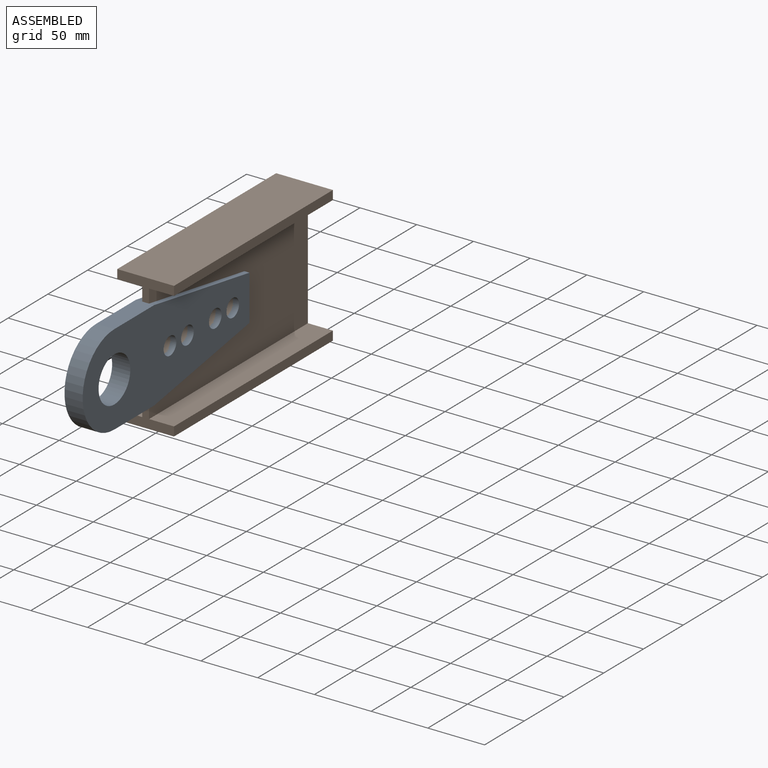
[diagram: assembled view]
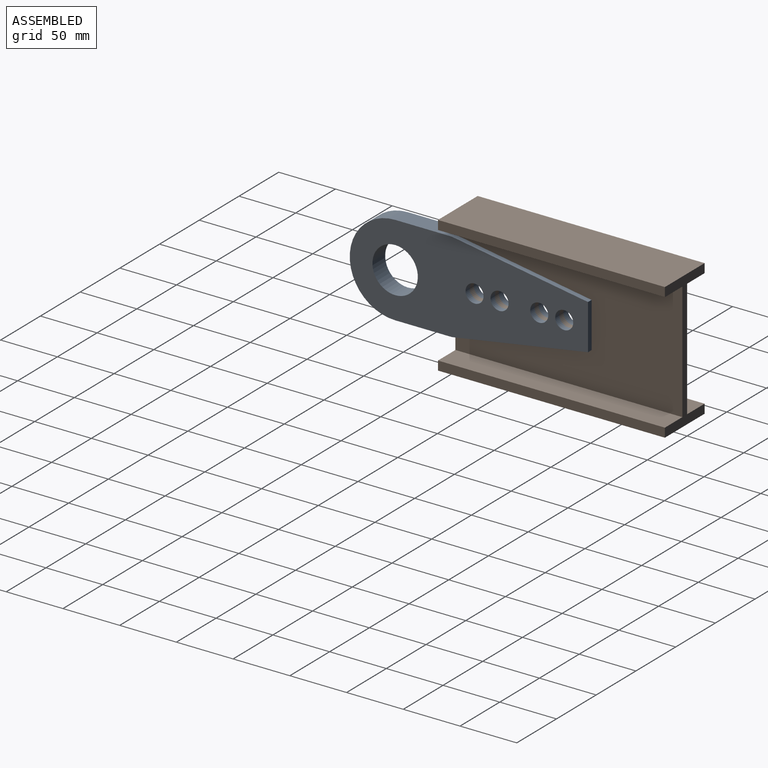
[diagram: assembled view, second angle]
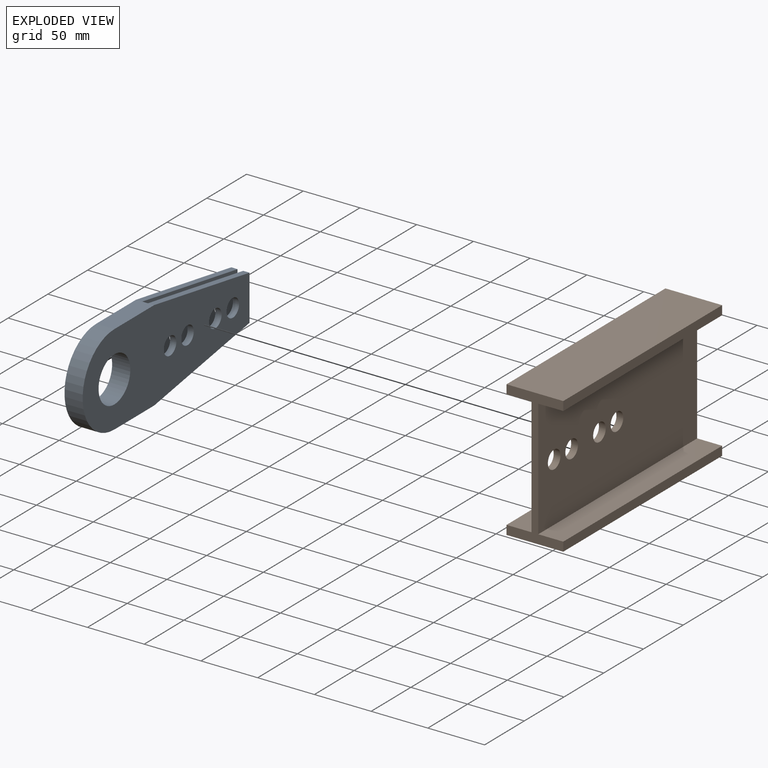
[diagram: exploded view]
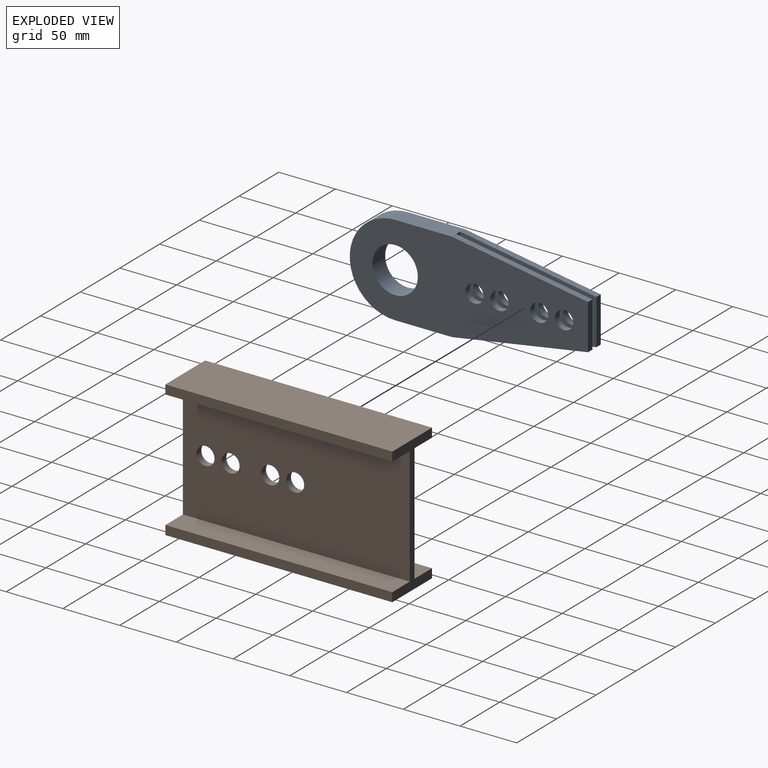
[diagram: exploded view, second angle]
ASSEMBLY  parts=2 mates=3
PART A: 23 faces, bbox 210x16x80 mm
  f0: plane 50x16mm, normal (0,0,1), area 800mm2, adj f1,f2,f3,f8,f9,f17
  f1: plane 120x20mm, normal (-0.16,0,0.99), area 669.1mm2, adj f0,f5,f8,f16
  f2: cylinder r=40mm len=80mm, axis (0,1,0), area 2010.6mm2, adj f0,f7,f8,f9
  f3: plane 120x20mm, normal (-0.16,0,0.99), area 669.1mm2, adj f0,f4,f9,f15
  f4: plane 40x5.5mm, normal (-1,0,0), area 220mm2, adj f3,f9,f15,f18
  f5: plane 40x5.5mm, normal (-1,0,0), area 220mm2, adj f1,f6,f8,f16
  f6: plane 120x20mm, normal (-0.16,0,-0.99), area 669.1mm2, adj f5,f7,f8,f16
  f7: plane 50x16mm, normal (0,0,-1), area 800mm2, adj f2,f6,f8,f9,f17,f18
  f8: plane 210x80mm, normal (0,-1,0), area 11664.4mm2, adj f0,f1,f2,f5,f6,f7,f10,f11
  f9: plane 210x80mm, normal (0,1,0), area 11664.4mm2, adj f0,f2,f3,f4,f7,f14,f18,f19
  f10: cylinder r=7.94mm len=15.88mm, axis (0,1,0), area 274.4mm2, adj f8,f16
  f11: cylinder r=7.94mm len=15.88mm, axis (0,1,0), area 274.4mm2, adj f8,f16
  f12: cylinder r=7.94mm len=15.88mm, axis (0,1,0), area 274.4mm2, adj f8,f16
  f13: cylinder r=7.94mm len=15.88mm, axis (0,1,0), area 274.4mm2, adj f8,f16
  f14: cylinder r=20mm len=40mm, axis (0,1,0), area 2010.6mm2, adj f8,f9
  f15: plane 120x80mm, normal (0,-1,0), area 6407.8mm2, adj f3,f4,f17,f18,f19,f20,f21,f22
  f16: plane 120x80mm, normal (0,1,0), area 6407.8mm2, adj f1,f5,f6,f10,f11,f12,f13,f17
  f17: plane 80x5mm, normal (-1,0,0), area 400mm2, adj f0,f7,f15,f16
  f18: plane 120x20mm, normal (-0.16,0,-0.99), area 669.1mm2, adj f4,f7,f9,f15
  f19: cylinder r=7.94mm len=15.88mm, axis (0,1,0), area 274.4mm2, adj f9,f15
  f20: cylinder r=7.94mm len=15.88mm, axis (0,1,0), area 274.4mm2, adj f9,f15
  f21: cylinder r=7.94mm len=15.88mm, axis (0,1,0), area 274.4mm2, adj f9,f15
  f22: cylinder r=7.94mm len=15.88mm, axis (0,1,0), area 274.4mm2, adj f9,f15
PART B: 18 faces, bbox 50x200x120 mm
  f0: plane 200x104mm, normal (-1,0,0), area 20007.8mm2, adj f1,f2,f5,f6,f7,f8,f9,f10
  f1: plane 200x22mm, normal (0,0,1), area 4400mm2, adj f0,f5,f6,f14
  f2: plane 200x22mm, normal (0,0,-1), area 4400mm2, adj f0,f4,f5,f6
  f3: plane 200x50mm, normal (0,0,1), area 10000mm2, adj f4,f5,f6,f16
  f4: plane 200x8mm, normal (-1,0,0), area 1600mm2, adj f2,f3,f5,f6
  f5: plane 120x50mm, normal (0,1,0), area 1424mm2, adj f0,f1,f2,f3,f4,f11,f12,f13
  f6: plane 120x50mm, normal (0,-1,0), area 1424mm2, adj f0,f1,f2,f3,f4,f11,f12,f13
  f7: cylinder r=7.94mm len=15.88mm, axis (-1,0,0), area 299.3mm2, adj f0,f17
  f8: cylinder r=7.94mm len=15.88mm, axis (-1,0,0), area 299.3mm2, adj f0,f17
  f9: cylinder r=7.94mm len=15.88mm, axis (-1,0,0), area 299.3mm2, adj f0,f17
  f10: cylinder r=7.94mm len=15.88mm, axis (-1,0,0), area 299.3mm2, adj f0,f17
  f11: plane 200x22mm, normal (0,0,1), area 4400mm2, adj f5,f6,f13,f17
  f12: plane 200x22mm, normal (0,0,-1), area 4400mm2, adj f5,f6,f16,f17
  f13: plane 200x8mm, normal (1,0,0), area 1600mm2, adj f5,f6,f11,f15
  f14: plane 200x8mm, normal (-1,0,0), area 1600mm2, adj f1,f5,f6,f15
  f15: plane 200x50mm, normal (0,0,-1), area 10000mm2, adj f5,f6,f13,f14
  f16: plane 200x8mm, normal (1,0,0), area 1600mm2, adj f3,f5,f6,f12
  f17: plane 200x104mm, normal (1,0,0), area 20007.8mm2, adj f5,f6,f7,f8,f9,f10,f11,f12
PLACE A rot(axis=(0.71,-0.71,0),180deg) t=(-47.46,-105.5,-73)mm
PLACE B t=(-51.96,-55.5,-43.9)mm fixed
MATE cylindrical A.f10 <-> B.f7  axis (1,0,0) through (-57.96,43.5,-73)mm
MATE cylindrical A.f13 <-> B.f10  axis (1,0,0) through (-57.96,-35.5,-73)mm
MATE planar A.f15 <-> B.f0  axis (1,0,0) through (-57.96,-2.93,-73)mm
